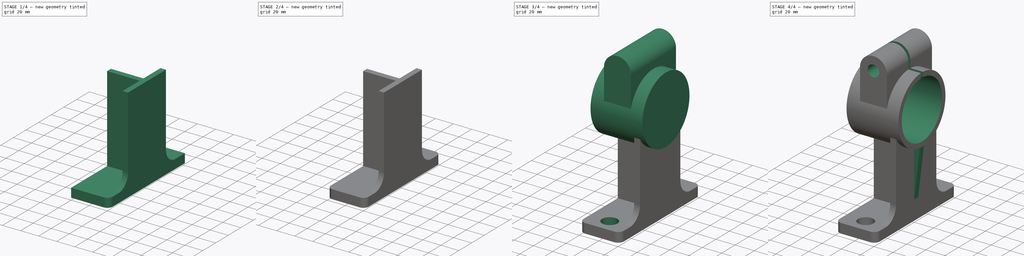
[diagram: build sequence overview — one tinted view per stage of 4, left to right]
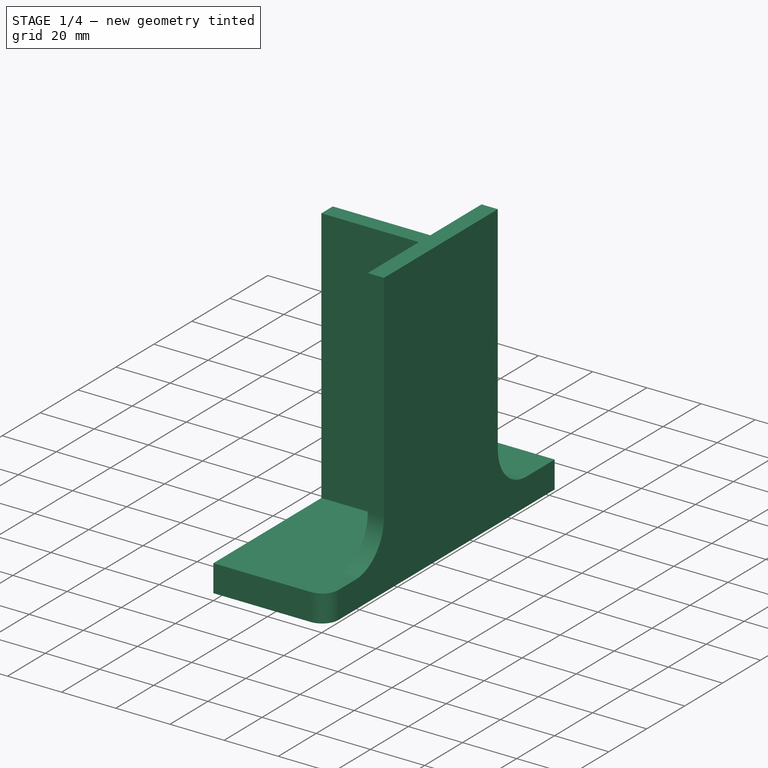
[diagram: stage 1 of 4 — iso view after this stage's code; geometry added in this stage tinted green]
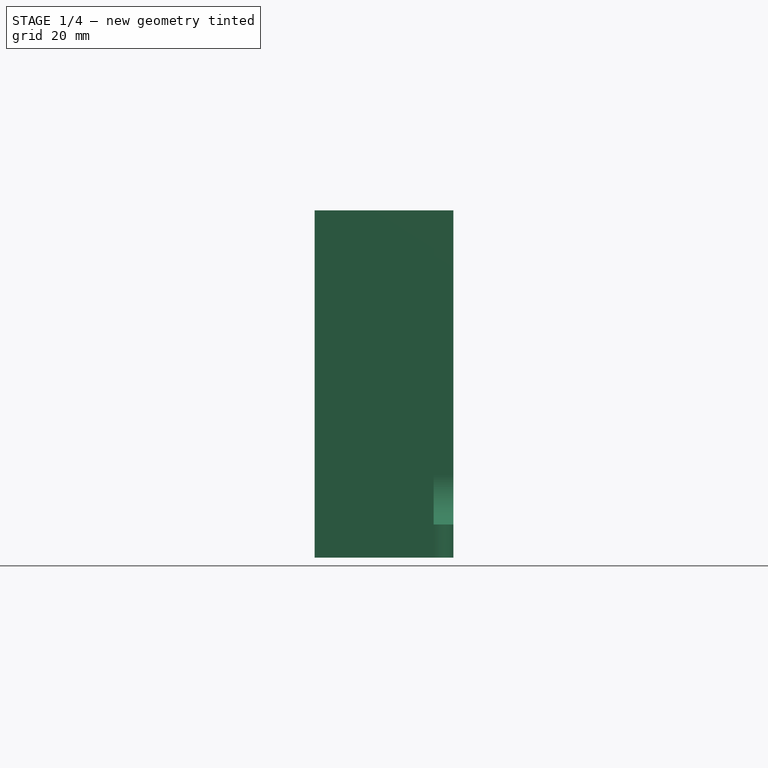
[diagram: stage 1 of 4 — front view after this stage's code; geometry added in this stage tinted green]
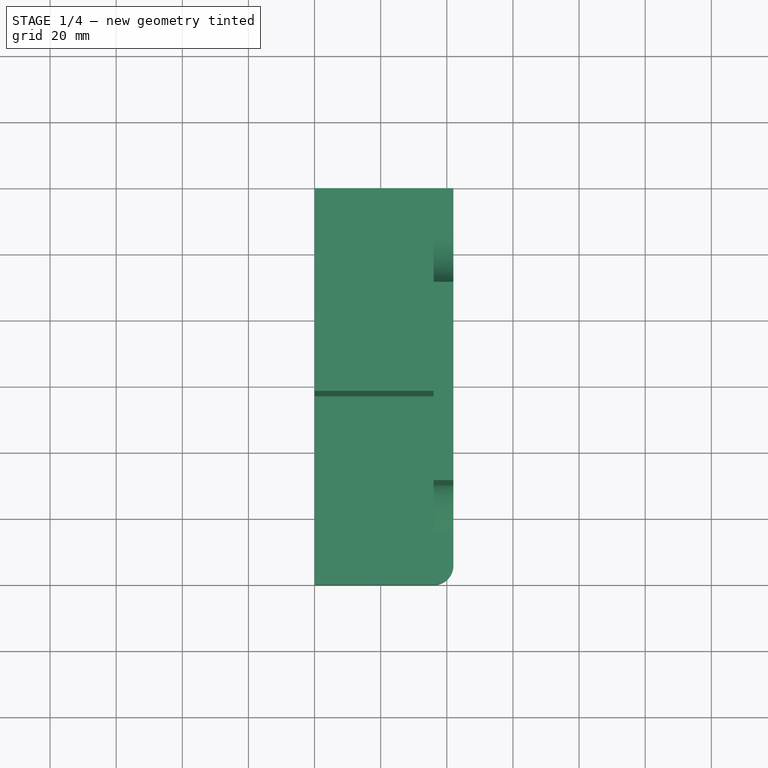
[diagram: stage 1 of 4 — top view after this stage's code; geometry added in this stage tinted green]
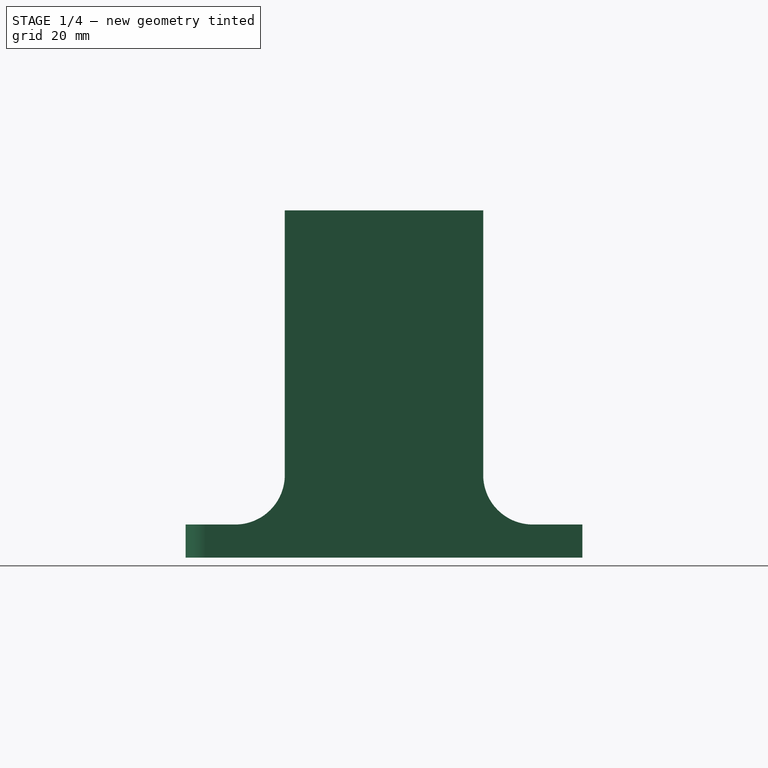
[diagram: stage 1 of 4 — right view after this stage's code; geometry added in this stage tinted green]
FCSTD DOCUMENT  (FreeCAD 0.18R4 (GitTag))
Label: Joint1
License: All rights reserved
LicenseURL: http://en.wikipedia.org/wiki/All_rights_reserved
objects: Sketcher::SketchObject×9, PartDesign::Pocket×5, PartDesign::Pad×4, PartDesign::Fillet×4, PartDesign::Body×1
note: 32 computed .brp shape members not serialized (recipe doc carries the construction recipe); baked Part::Feature solids carry a one-line shape summary decoded from their .brp

FEATURE [Sketcher::SketchObject] Sketch
  MapMode = 5
  Placement = pos=(0,0,0) rot=(0.57735,0.57735,0.57735;2.0944rad)
  Support = -> [YZ_Plane]
  sketch-geometry (10):
    g0: LineSegment StartX=-60 StartY=0 StartZ=0 EndX=60 EndY=0 EndZ=0
    g1: LineSegment StartX=60 StartY=0 StartZ=0 EndX=60 EndY=10 EndZ=0
    g2: LineSegment StartX=60 StartY=10 StartZ=0 EndX=45 EndY=10 EndZ=0
    g3: LineSegment StartX=30 StartY=25 StartZ=0 EndX=30 EndY=105 EndZ=0
    g4: LineSegment StartX=30 StartY=105 StartZ=0 EndX=-30 EndY=105 EndZ=0
    g5: LineSegment StartX=-30 StartY=105 StartZ=0 EndX=-30 EndY=25 EndZ=0
    g6: LineSegment StartX=-45 StartY=10 StartZ=0 EndX=-60 EndY=10 EndZ=0
    g7: LineSegment StartX=-60 StartY=10 StartZ=0 EndX=-60 EndY=0 EndZ=0
    g8: ArcOfCircle CenterX=45 CenterY=25 CenterZ=0 NormalX=0 NormalY=0 NormalZ=1 AngleXU=0 Radius=15 StartAngle=3.14159 EndAngle=4.71239
    g9: ArcOfCircle CenterX=-45 CenterY=25 CenterZ=0 NormalX=0 NormalY=0 NormalZ=1 AngleXU=0 Radius=15 StartAngle=4.71239 EndAngle=6.28319
  constraints (30):
    c: Coincident(g0,g1)
    c: Coincident(g1,g2)
    c: Coincident(g3,g4)
    c: Coincident(g4,g5)
    c: Coincident(g6,g7)
    c: Coincident(g7,g0)
    c: Vertical(g1)
    c: Vertical(g7)
    c: Vertical(g5)
    c: Vertical(g3)
    c: Horizontal(g2)
    c: Horizontal(g4)
    c: Horizontal(g6)
    c: Symmetric(g0,g0,g-2)
    c: Symmetric(g6,g2,g-2)
    c: Symmetric(g5,g3,g-2)
    c: Distance(g0) = 120
    c: Distance(g6,g2) = 90
    c: Distance(g5,g3) = 60
    c: PointOnObject(g0,g-1)
    c: Distance(g7) = 10
    c: DistanceY(g-1,g3) = 105
    c: Vertical(g8,g8)
    c: Horizontal(g8,g8)
    c: Coincident(g8,g3)
    c: Coincident(g8,g2)
    c: Vertical(g9,g9)
    c: Horizontal(g9,g9)
    c: Radius(g9) = 15
    c: Coincident(g9,g5)
FEATURE [PartDesign::Pad] Pad
  Length = 42
  Length2 = 100
  Placement = pos=(0,0,0) rot=(0.57735,0.57735,0.57735;2.0944rad)
  Profile = -> Sketch
  Type = 0
FEATURE [Sketcher::SketchObject] Sketch001
  MapMode = 5
  Placement = pos=(-2.94e-14,4.62e-14,105) rot=(0,0,-1;1.5708rad)
  Support = -> [Pad]
  sketch-geometry (8):
    g0: LineSegment StartX=-3 StartY=36 StartZ=0 EndX=-60 EndY=36 EndZ=0
    g1: LineSegment StartX=-60 StartY=36 StartZ=0 EndX=-60 EndY=0 EndZ=0
    g2: LineSegment StartX=-60 StartY=0 StartZ=0 EndX=-3 EndY=0 EndZ=0
    g3: LineSegment StartX=-3 StartY=0 StartZ=0 EndX=-3 EndY=36 EndZ=0
    g4: LineSegment StartX=3 StartY=0 StartZ=0 EndX=60 EndY=0 EndZ=0
    g5: LineSegment StartX=60 StartY=0 StartZ=0 EndX=60 EndY=36 EndZ=0
    g6: LineSegment StartX=60 StartY=36 StartZ=0 EndX=3 EndY=36 EndZ=0
    g7: LineSegment StartX=3 StartY=36 StartZ=0 EndX=3 EndY=0 EndZ=0
  constraints (24):
    c: Coincident(g0,g1)
    c: Coincident(g1,g2)
    c: Coincident(g2,g3)
    c: Coincident(g3,g0)
    c: Horizontal(g0)
    c: Horizontal(g2)
    c: Vertical(g1)
    c: Vertical(g3)
    c: Distance(g2) = 57
    c: Distance(g3) = 36
    c: PointOnObject(g2,g-1)
    c: DistanceX(g2,g-1) = 3
    c: Coincident(g4,g5)
    c: Coincident(g5,g6)
    c: Coincident(g6,g7)
    c: Coincident(g7,g4)
    c: Horizontal(g4)
    c: Horizontal(g6)
    c: Vertical(g5)
    c: Vertical(g7)
    c: Distance(g7) = 36
    c: Distance(g4) = 57
    c: PointOnObject(g4,g-1)
    c: DistanceX(g-2,g4) = 3
FEATURE [PartDesign::Pocket] Pocket
  BaseFeature = -> Pad
  Length = 95
  Length2 = 100
  Placement = pos=(0,0,0) rot=(0.57735,0.57735,0.57735;2.0944rad)
  Profile = -> Sketch001
  Type = 0
FEATURE [PartDesign::Fillet] Fillet
  Base = -> Pocket [Edge16]
  BaseFeature = -> Pocket
  Placement = pos=(0,0,0) rot=(0.57735,0.57735,0.57735;2.0944rad)
  Radius = 6
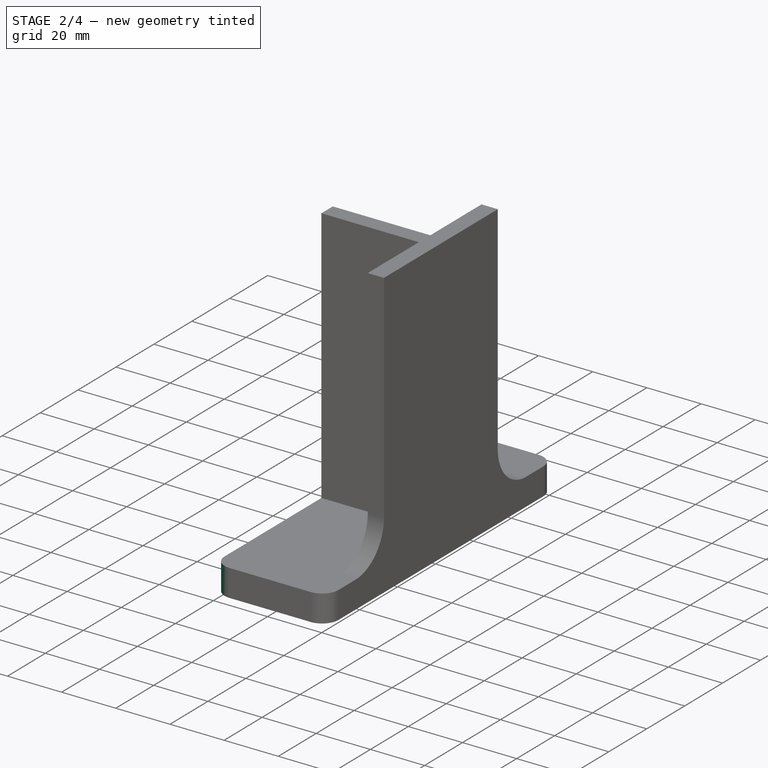
[diagram: stage 2 of 4 — iso view after this stage's code; geometry added in this stage tinted green]
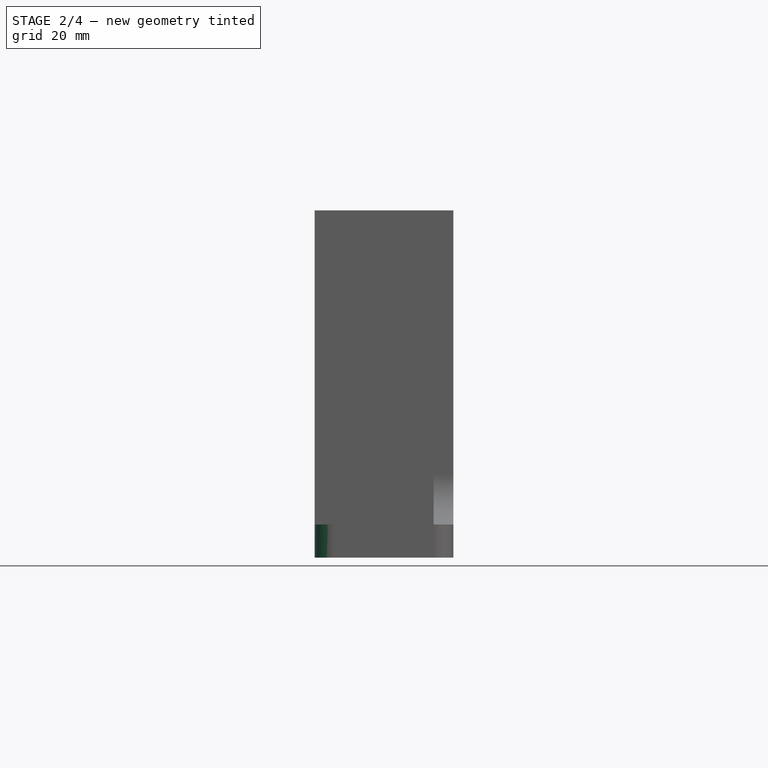
[diagram: stage 2 of 4 — front view after this stage's code; geometry added in this stage tinted green]
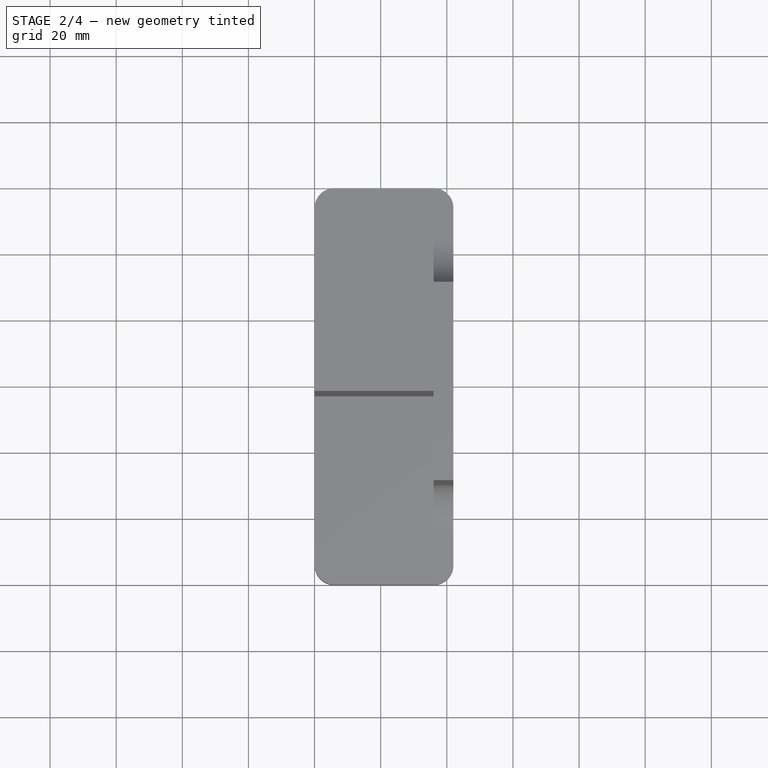
[diagram: stage 2 of 4 — top view after this stage's code; geometry added in this stage tinted green]
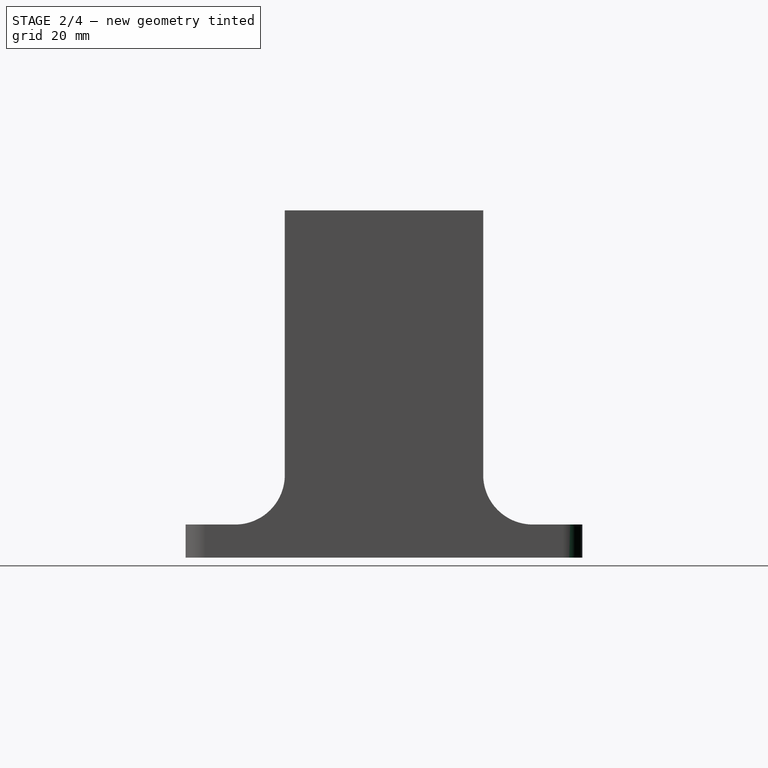
[diagram: stage 2 of 4 — right view after this stage's code; geometry added in this stage tinted green]
FEATURE [PartDesign::Fillet] Fillet001
  Base = -> Fillet [Edge3]
  BaseFeature = -> Fillet
  Placement = pos=(0,0,0) rot=(0.57735,0.57735,0.57735;2.0944rad)
  Radius = 6
FEATURE [PartDesign::Fillet] Fillet002
  Base = -> Fillet001 [Edge27]
  BaseFeature = -> Fillet001
  Placement = pos=(0,0,0) rot=(0.57735,0.57735,0.57735;2.0944rad)
  Radius = 6
FEATURE [PartDesign::Fillet] Fillet003
  Base = -> Fillet002 [Edge21]
  BaseFeature = -> Fillet002
  Placement = pos=(0,0,0) rot=(0.57735,0.57735,0.57735;2.0944rad)
  Radius = 6
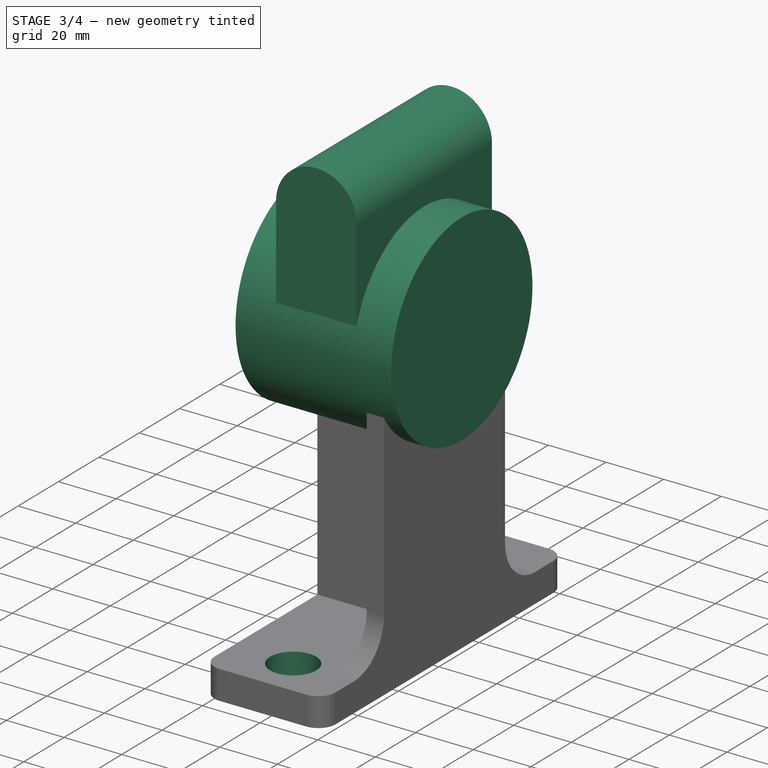
[diagram: stage 3 of 4 — iso view after this stage's code; geometry added in this stage tinted green]
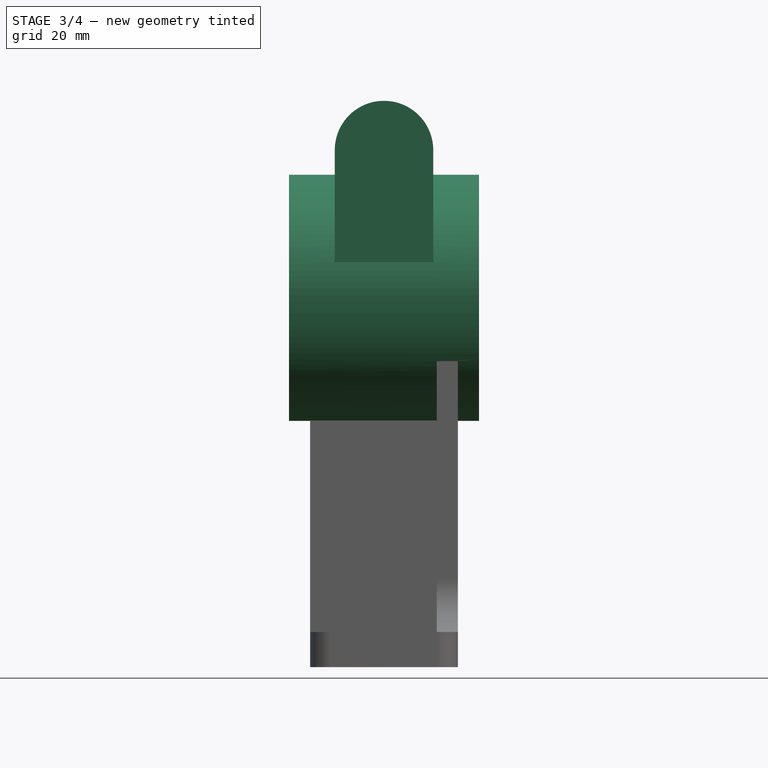
[diagram: stage 3 of 4 — front view after this stage's code; geometry added in this stage tinted green]
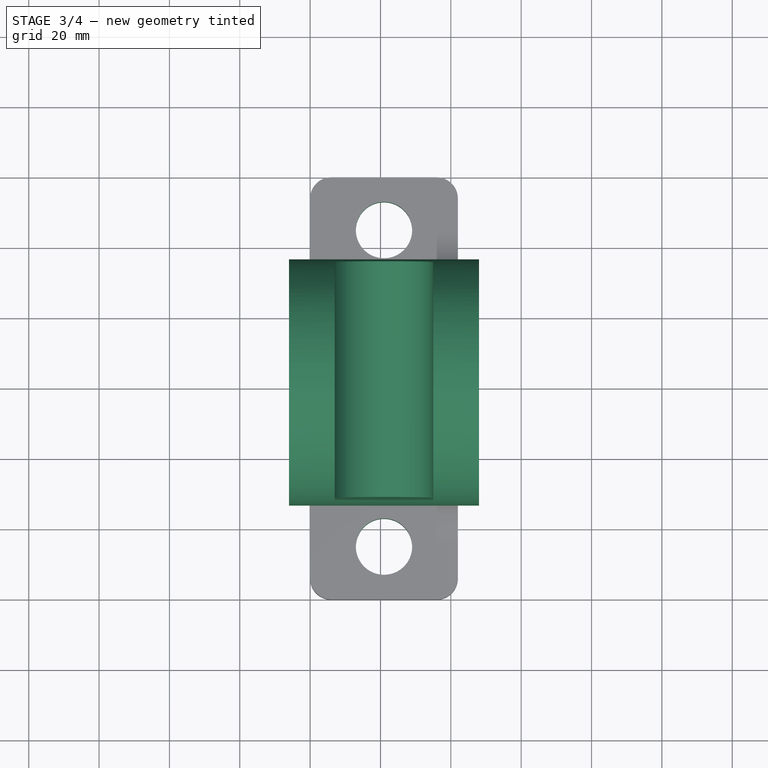
[diagram: stage 3 of 4 — top view after this stage's code; geometry added in this stage tinted green]
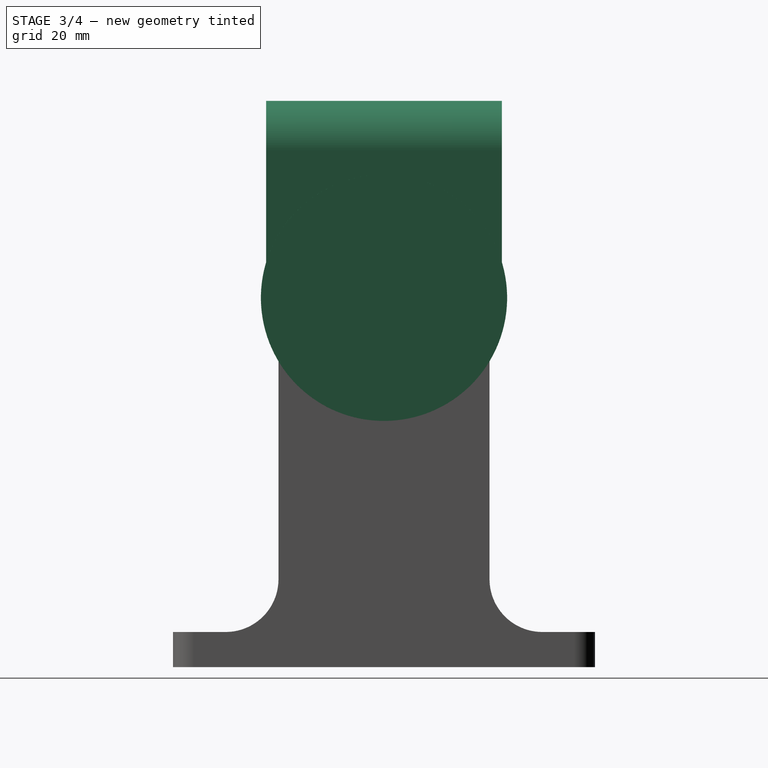
[diagram: stage 3 of 4 — right view after this stage's code; geometry added in this stage tinted green]
FEATURE [Sketcher::SketchObject] Sketch002
  MapMode = 5
  Placement = pos=(-3.9e-15,5e-15,10) rot=(0,0,-1;1.5708rad)
  Support = -> [Fillet003]
  sketch-geometry (2):
    g0: Circle CenterX=-45 CenterY=21 CenterZ=0 NormalX=0 NormalY=0 NormalZ=1 AngleXU=0 Radius=8
    g1: Circle CenterX=45 CenterY=21 CenterZ=0 NormalX=0 NormalY=0 NormalZ=1 AngleXU=0 Radius=8
  constraints (6):
    c: Radius(g0) = 8
    c: DistanceY(g-1,g0) = 21
    c: DistanceX(g0,g-1) = 45
    c: Radius(g1) = 8
    c: DistanceY(g-1,g1) = 21
    c: DistanceX(g-2,g1) = 45
FEATURE [PartDesign::Pocket] Pocket001
  BaseFeature = -> Fillet003
  Length = 5
  Length2 = 100
  Placement = pos=(0,0,0) rot=(0.57735,0.57735,0.57735;2.0944rad)
  Profile = -> Sketch002
  Type = 1
FEATURE [Sketcher::SketchObject] Sketch003
  MapMode = 5
  Placement = pos=(0,0,0) rot=(0.57735,0.57735,0.57735;2.0944rad)
  Support = -> [YZ_Plane]
  sketch-geometry (2):
    g0: ArcOfCircle CenterX=0 CenterY=105 CenterZ=0 NormalX=0 NormalY=0 NormalZ=1 AngleXU=0 Radius=35 StartAngle=3.14159 EndAngle=6.28319
    g1: LineSegment StartX=-35 StartY=105 StartZ=0 EndX=35 EndY=105 EndZ=0
  constraints (7):
    c: Horizontal(g0,g0)
    c: Horizontal(g0,g0)
    c: Coincident(g1,g0)
    c: Coincident(g1,g0)
    c: Radius(g0) = 35
    c: PointOnObject(g0,g-2)
    c: DistanceY(g-1,g0) = 105
FEATURE [PartDesign::Pocket] Pocket002
  BaseFeature = -> Pocket001
  Length = 5
  Length2 = 100
  Placement = pos=(0,0,0) rot=(0.57735,0.57735,0.57735;2.0944rad)
  Profile = -> Sketch003
  Reversed = true
  Type = 1
FEATURE [Sketcher::SketchObject] Sketch004
  MapMode = 5
  Placement = pos=(48,0,105) rot=(0,1,0;1.5708rad)
  sketch-geometry (1):
    g0: Circle CenterX=0 CenterY=0 CenterZ=0 NormalX=0 NormalY=0 NormalZ=1 AngleXU=0 Radius=35
  constraints (2):
    c: Radius(g0) = 35
    c: Coincident(g0,g-1)
FEATURE [PartDesign::Pad] Pad001
  BaseFeature = -> Pocket002
  Length = 54
  Length2 = 100
  Placement = pos=(0,0,0) rot=(0.57735,0.57735,0.57735;2.0944rad)
  Profile = -> Sketch004
  Reversed = true
  Type = 0
FEATURE [Sketcher::SketchObject] Sketch006
  MapMode = 5
  Placement = pos=(0,0,0) rot=(1,0,0;1.5708rad)
  Support = -> [XZ_Plane]
  sketch-geometry (4):
    g0: LineSegment StartX=7 StartY=147 StartZ=0 EndX=7 EndY=105 EndZ=0
    g1: LineSegment StartX=7 StartY=105 StartZ=0 EndX=35 EndY=105 EndZ=0
    g2: LineSegment StartX=35 StartY=105 StartZ=0 EndX=35 EndY=147 EndZ=0
    g3: ArcOfCircle CenterX=21 CenterY=147 CenterZ=0 NormalX=0 NormalY=0 NormalZ=1 AngleXU=0 Radius=14 StartAngle=0 EndAngle=3.14159
  constraints (13):
    c: Coincident(g0,g1)
    c: Vertical(g2)
    c: Distance(g1) = 28
    c: Distance(g0) = 42
    c: Horizontal(g3,g3)
    c: Horizontal(g3,g3)
    c: Radius(g3) = 14
    c: Coincident(g3,g0)
    c: Coincident(g2,g3)
    c: Coincident(g2,g1)
    c: Vertical(g0,g0)
    c: DistanceX(g-2,g3) = 21
    c: DistanceY(g-1,g1) = 105
FEATURE [PartDesign::Pad] Pad002
  BaseFeature = -> Pad001
  Length = 67
  Length2 = 100
  Midplane = true
  Placement = pos=(0,0,0) rot=(0.57735,0.57735,0.57735;2.0944rad)
  Profile = -> Sketch006
  Type = 0
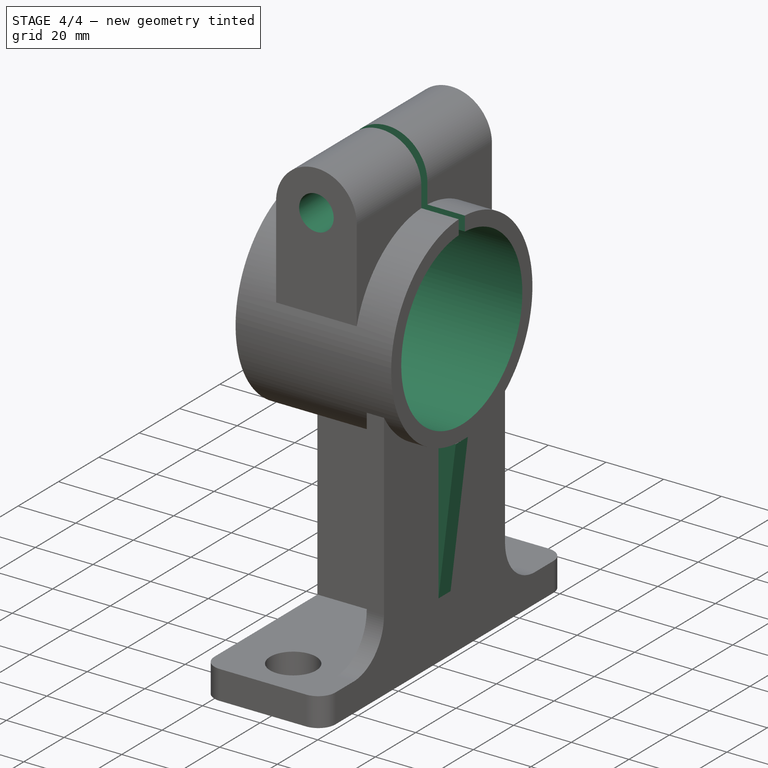
[diagram: stage 4 of 4 — iso view after this stage's code; geometry added in this stage tinted green]
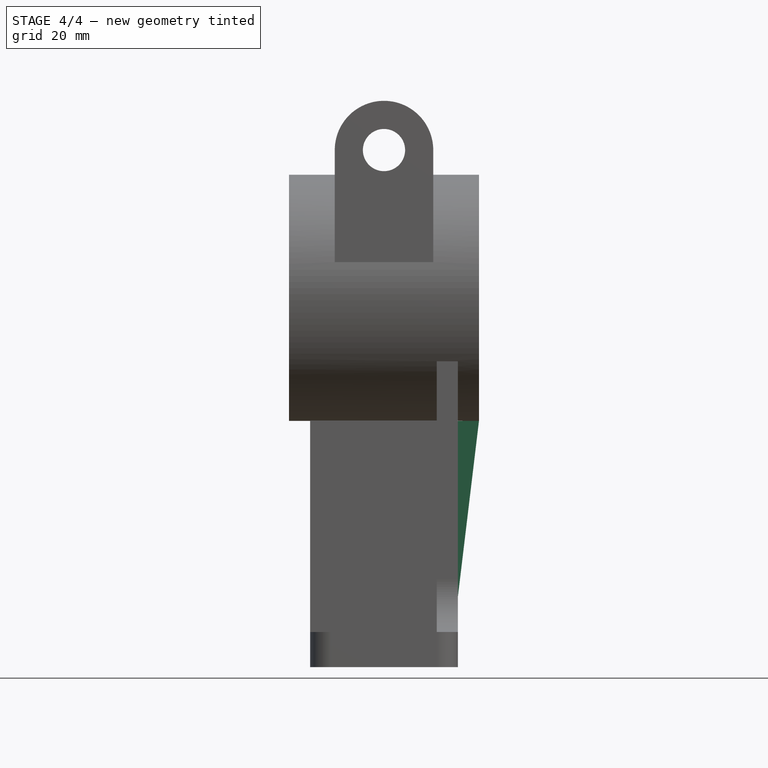
[diagram: stage 4 of 4 — front view after this stage's code; geometry added in this stage tinted green]
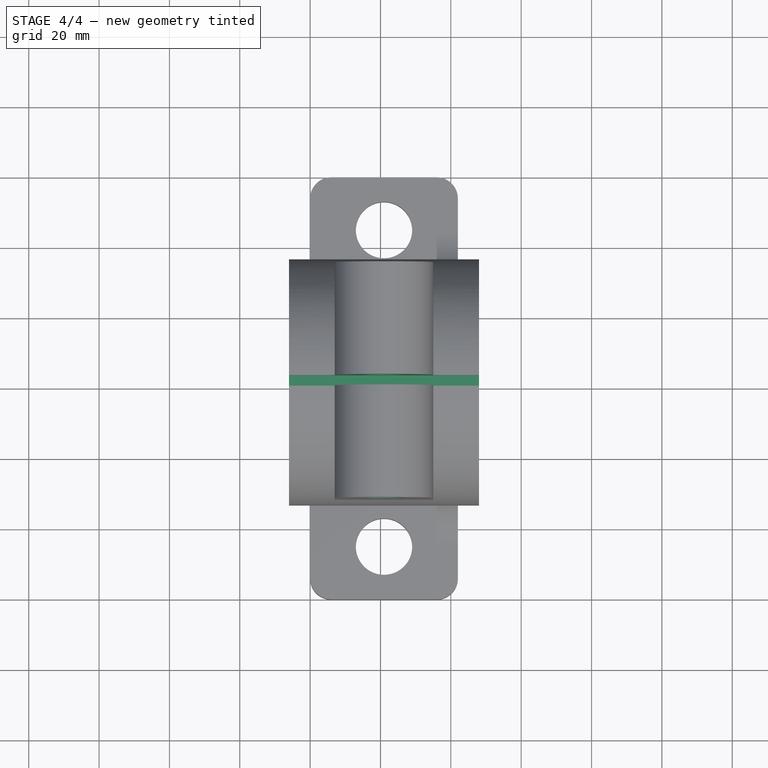
[diagram: stage 4 of 4 — top view after this stage's code; geometry added in this stage tinted green]
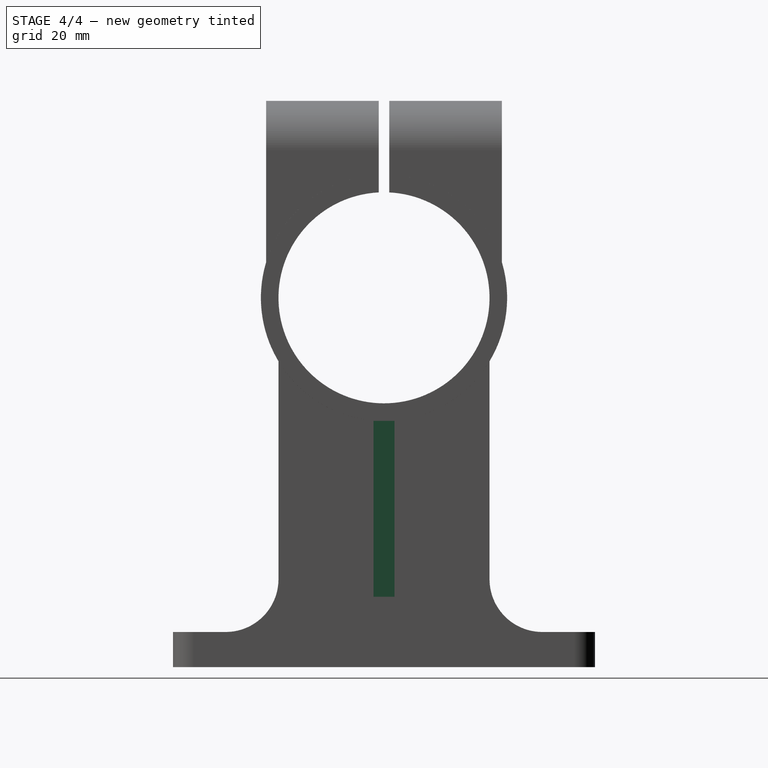
[diagram: stage 4 of 4 — right view after this stage's code; geometry added in this stage tinted green]
FEATURE [Sketcher::SketchObject] Sketch007
  MapMode = 5
  Placement = pos=(48,0,1.83e-14) rot=(0.57735,0.57735,0.57735;2.0944rad)
  Support = -> [Pad002]
  sketch-geometry (4):
    g0: ArcOfCircle CenterX=1.12e-14 CenterY=105 CenterZ=0 NormalX=0 NormalY=0 NormalZ=1 AngleXU=0 Radius=30 StartAngle=1.62082 EndAngle=7.80396
    g1: LineSegment StartX=-1.5 StartY=163 StartZ=0 EndX=1.5 EndY=163 EndZ=0
    g2: LineSegment StartX=1.5 StartY=163 StartZ=0 EndX=1.5 EndY=134.962 EndZ=0
    g3: LineSegment StartX=-1.5 StartY=134.962 StartZ=0 EndX=-1.5 EndY=163 EndZ=0
  constraints (12):
    c: Radius(g0) = 30
    c: Coincident(g1,g2)
    c: Coincident(g3,g1)
    c: Horizontal(g1)
    c: Vertical(g2)
    c: Vertical(g3)
    c: Distance(g1) = 3
    c: Coincident(g2,g0)
    c: Coincident(g3,g0)
    c: Symmetric(g0,g0,g-2)
    c: DistanceY(g-1,g0) = 105
    c: DistanceY(g0,g1) = 58
FEATURE [PartDesign::Pocket] Pocket003
  BaseFeature = -> Pad002
  Length = 5
  Length2 = 100
  Placement = pos=(0,0,0) rot=(0.57735,0.57735,0.57735;2.0944rad)
  Profile = -> Sketch007
  Type = 1
FEATURE [Sketcher::SketchObject] Sketch008
  MapMode = 5
  Placement = pos=(-3.7e-15,-33.5,-7.4e-15) rot=(0.57735,0.57735,-0.57735;2.0944rad)
  Support = -> [Pocket003]
  sketch-geometry (1):
    g0: Circle CenterX=-147 CenterY=21 CenterZ=0 NormalX=0 NormalY=0 NormalZ=1 AngleXU=0 Radius=6
  constraints (3):
    c: Radius(g0) = 6
    c: DistanceX(g0,g-1) = 147
    c: DistanceY(g-1,g0) = 21
FEATURE [PartDesign::Pocket] Pocket004
  BaseFeature = -> Pocket003
  Length = 5
  Length2 = 100
  Placement = pos=(0,0,0) rot=(0.57735,0.57735,0.57735;2.0944rad)
  Profile = -> Sketch008
  Type = 1
FEATURE [Sketcher::SketchObject] Sketch009
  MapMode = 5
  Placement = pos=(0,0,0) rot=(1,0,0;1.5708rad)
  Support = -> [XZ_Plane]
  sketch-geometry (3):
    g0: LineSegment StartX=42 StartY=70 StartZ=0 EndX=42 EndY=20 EndZ=0
    g1: LineSegment StartX=42 StartY=20 StartZ=0 EndX=48 EndY=70 EndZ=0
    g2: LineSegment StartX=48 StartY=70 StartZ=0 EndX=42 EndY=70 EndZ=0
  constraints (9):
    c: Coincident(g0,g1)
    c: Coincident(g1,g2)
    c: Coincident(g2,g0)
    c: Horizontal(g2)
    c: Vertical(g0)
    c: Distance(g2) = 6
    c: DistanceY(g-1,g0) = 20
    c: DistanceY(g-1,g0) = 70
    c: DistanceX(g-2,g0) = 42
FEATURE [PartDesign::Pad] Pad003
  BaseFeature = -> Pocket004
  Length = 6
  Length2 = 100
  Midplane = true
  Placement = pos=(0,0,0) rot=(0.57735,0.57735,0.57735;2.0944rad)
  Profile = -> Sketch009
  Type = 0
FEATURE [PartDesign::Body] Body
  Group = -> [Sketch,Pad,Sketch001,Pocket,Fillet,Fillet001,Fillet002,Fillet003,Sketch002,Pocket001,Sketch003,Pocket002,Sketch004,Pad001,Sketch006,Pad002,Sketch007,Pocket003,Sketch008,Pocket004,Sketch009,Pad003]
  Origin = -> Origin
  Tip = -> Pad003
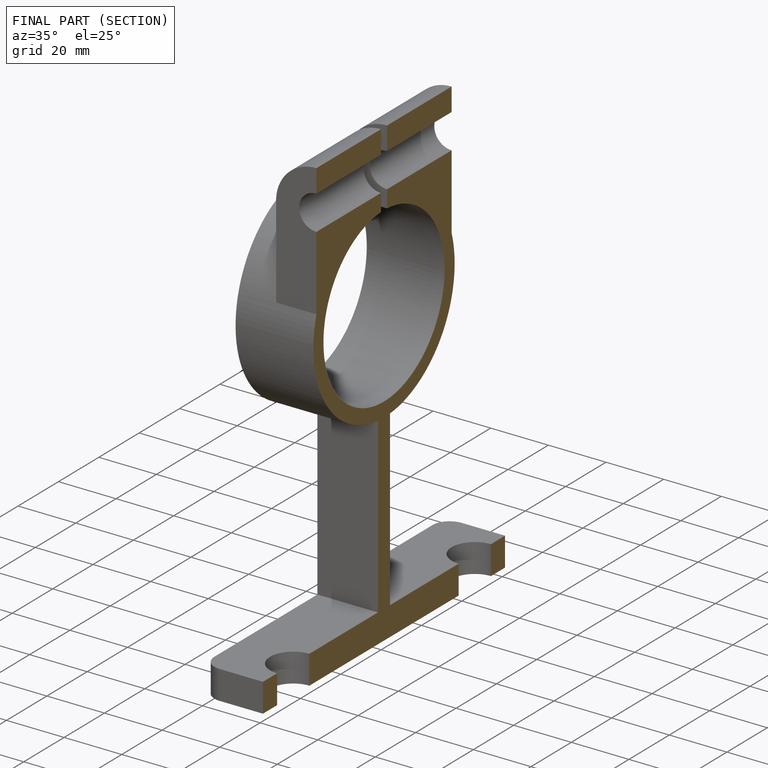
[diagram: finished part — half-section view (interior)]
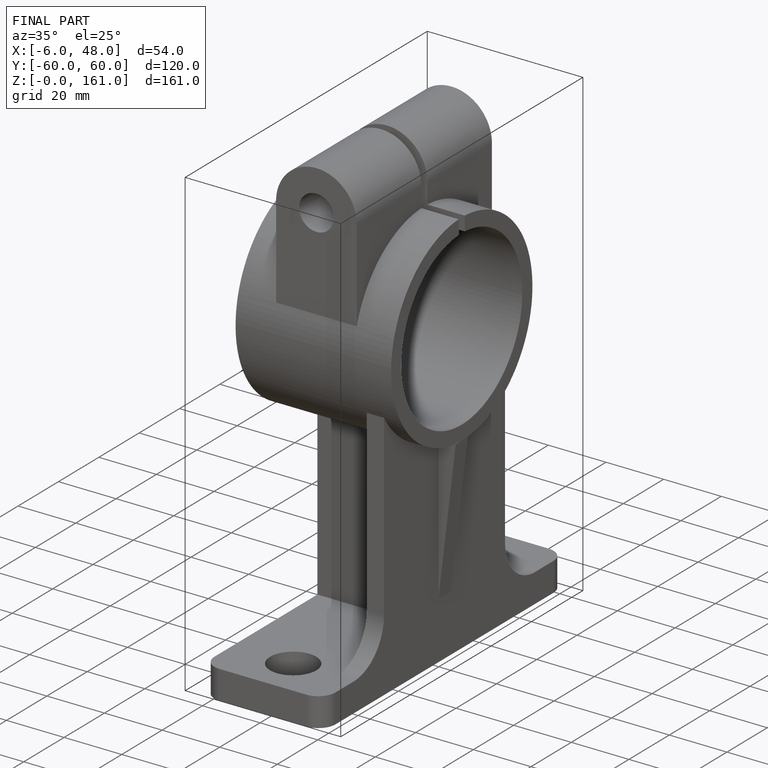
[diagram: finished part — iso view with bounding-box wireframe]
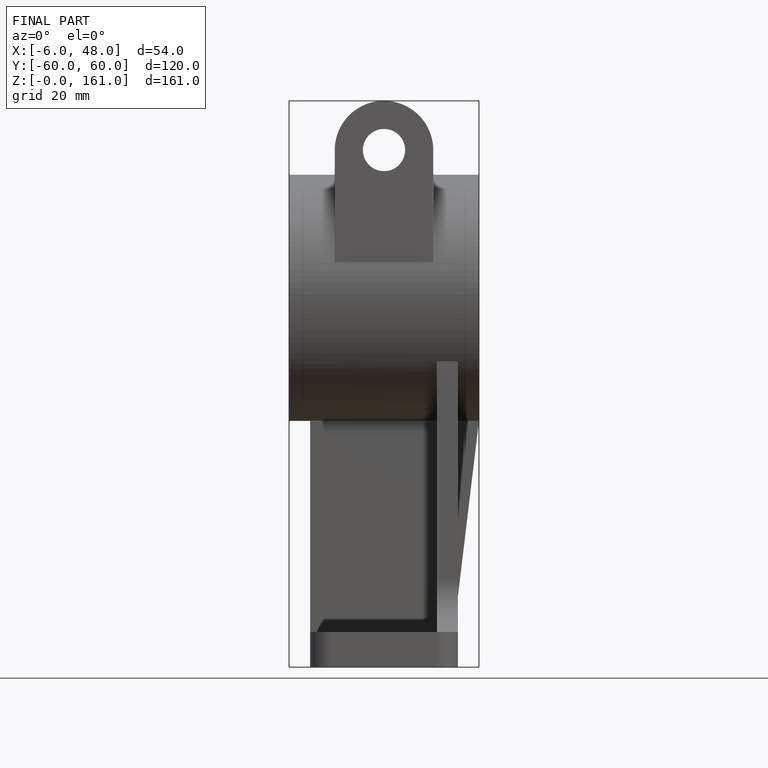
[diagram: finished part — front view with bounding-box wireframe]
